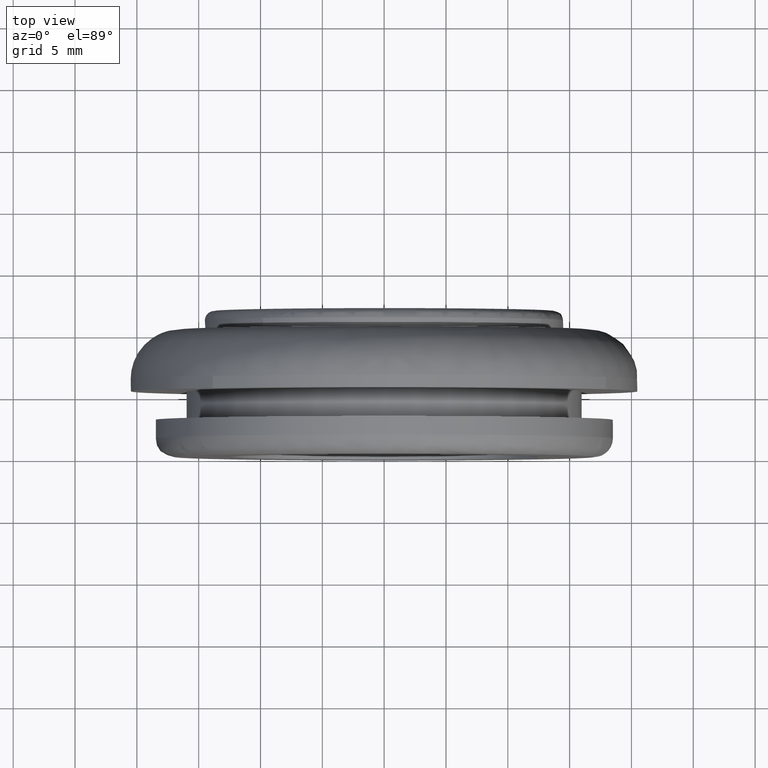
[diagram: clean part render]
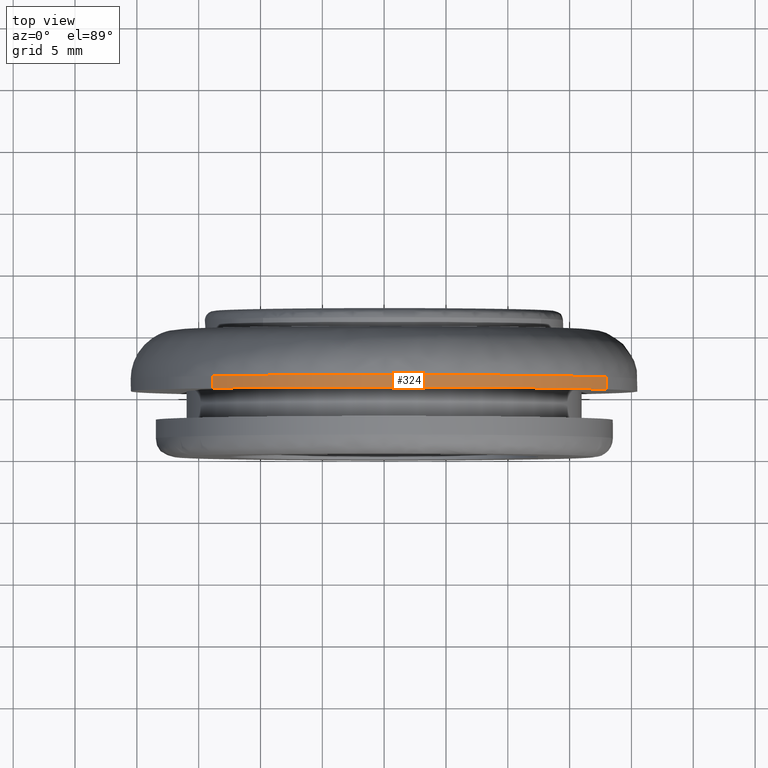
[diagram: same view with one face highlighted and labeled with its STEP entity id]
A machine part, top view. The second image highlights one B-rep face of the part: STEP entity #324.
In plain terms, the highlighted face is a freeform B-spline surface patch.
Its self-contained STEP definition (entity closure, byte-faithful):
#230=CARTESIAN_POINT('',(17.936401762584172,6.324999999999892,9.926504511214775));
#231=CARTESIAN_POINT('',(16.758128666065865,6.324999999999891,12.055549999616009));
#232=CARTESIAN_POINT('',(15.114185404607539,6.324999999999890,13.849599256121030));
#233=CARTESIAN_POINT('',(1.264586148486503,6.324999999999890,28.963784660728571));
#234=CARTESIAN_POINT('',(-13.849599256121030,6.324999999999890,15.114185404607539));
#235=CARTESIAN_POINT('',(17.936401762584172,5.274374999999889,9.926504511214775));
#236=CARTESIAN_POINT('',(16.758128666065865,5.274374999999889,12.055549999616009));
#237=CARTESIAN_POINT('',(15.114185404607539,5.274374999999889,13.849599256121030));
#238=CARTESIAN_POINT('',(1.264586148486503,5.274374999999888,28.963784660728571));
#239=CARTESIAN_POINT('',(-13.849599256121030,5.274374999999889,15.114185404607539));
#247=(BOUNDED_SURFACE()B_SPLINE_SURFACE(2,1,((#230,#235),(#231,#236),(#232,#237),(#233,#238),(#234,#239)),.UNSPECIFIED.,.F.,.F.,.U.)B_SPLINE_SURFACE_WITH_KNOTS((3,2,3),(2,2),(0.0,5.434481938335012,39.399994052928797),(0.0,1.0),.UNSPECIFIED.)GEOMETRIC_REPRESENTATION_ITEM()RATIONAL_B_SPLINE_SURFACE(((0.921270302782944,0.921270302782944),(0.953137084989848,0.953137084989848),(1.0,1.0),(0.707106781186548,0.707106781186548),(1.0,1.0)))REPRESENTATION_ITEM('')SURFACE());
#248=CARTESIAN_POINT('',(17.936403659718611,6.299996840897239,9.926501083237326));
#249=VERTEX_POINT('',#248);
#250=CARTESIAN_POINT('',(0.0,6.299999999999890,20.500000000000000));
#251=VERTEX_POINT('',#250);
#252=CARTESIAN_POINT('',(17.936403659718604,6.299996840897239,9.926501083237326));
#253=CARTESIAN_POINT('',(12.084737381349155,6.299998695911965,20.500000000000178));
#254=CARTESIAN_POINT('',(0.0,6.299999999999890,20.500000000000000));
#262=(BOUNDED_CURVE()B_SPLINE_CURVE(2,(#252,#253,#254),.UNSPECIFIED.,.F.,.U.)B_SPLINE_CURVE_WITH_KNOTS((3,3),(0.332484259560699,0.500000000000000),.UNSPECIFIED.)CURVE()GEOMETRIC_REPRESENTATION_ITEM()RATIONAL_B_SPLINE_CURVE((0.870495160891632,0.803743102323258,1.0))REPRESENTATION_ITEM(''));
#263=EDGE_CURVE('',#249,#251,#262,.T.);
#264=ORIENTED_EDGE('',*,*,#263,.T.);
#265=CARTESIAN_POINT('',(-13.849598433811980,6.299997751047101,15.114186158112631));
#266=VERTEX_POINT('',#265);
#267=CARTESIAN_POINT('',(0.0,6.299999999999890,20.500000000000000));
#268=CARTESIAN_POINT('',(-7.972013360987211,6.299999064663314,20.499999999999972));
#269=CARTESIAN_POINT('',(-13.849598433811982,6.299997751047101,15.114186158112620));
#277=(BOUNDED_CURVE()B_SPLINE_CURVE(2,(#267,#268,#269),.UNSPECIFIED.,.F.,.U.)B_SPLINE_CURVE_WITH_KNOTS((3,3),(0.500000000000000,0.618415200870903),.UNSPECIFIED.)CURVE()GEOMETRIC_REPRESENTATION_ITEM()RATIONAL_B_SPLINE_CURVE((1.0,0.861267962641919,0.853959781851732))REPRESENTATION_ITEM(''));
#278=EDGE_CURVE('',#251,#266,#277,.T.);
#279=ORIENTED_EDGE('',*,*,#278,.T.);
#280=CARTESIAN_POINT('',(-13.849598450727401,5.299999999999891,15.114186142614759));
#281=VERTEX_POINT('',#280);
#282=CARTESIAN_POINT('',(-13.849598433811980,6.299997751047101,15.114186158112631));
#283=CARTESIAN_POINT('',(-13.849598450727401,5.299999999999891,15.114186142614759));
#284=QUASI_UNIFORM_CURVE('',1,(#282,#283),.UNSPECIFIED.,.F.,.U.);
#285=EDGE_CURVE('',#266,#281,#284,.T.);
#286=ORIENTED_EDGE('',*,*,#285,.T.);
#287=CARTESIAN_POINT('',(0.0,5.299999999999890,20.500000000000000));
#288=VERTEX_POINT('',#287);
#289=CARTESIAN_POINT('',(0.0,5.299999999999890,20.500000000000000));
#290=CARTESIAN_POINT('',(-7.972013374192666,5.299999999999890,20.499999999999993));
#291=CARTESIAN_POINT('',(-13.849598450727425,5.299999999999890,15.114186142614775));
#299=(BOUNDED_CURVE()B_SPLINE_CURVE(2,(#289,#290,#291),.UNSPECIFIED.,.F.,.U.)B_SPLINE_CURVE_WITH_KNOTS((3,3),(0.500000000000000,0.618415201039816),.UNSPECIFIED.)CURVE()GEOMETRIC_REPRESENTATION_ITEM()RATIONAL_B_SPLINE_CURVE((1.0,0.861267962444025,0.853959781830883))REPRESENTATION_ITEM(''));
#300=EDGE_CURVE('',#288,#281,#299,.T.);
#301=ORIENTED_EDGE('',*,*,#300,.F.);
#302=CARTESIAN_POINT('',(17.936403453627150,5.299999999999891,9.926501455633794));
#303=VERTEX_POINT('',#302);
#304=CARTESIAN_POINT('',(17.936403453627143,5.299999999999891,9.926501455633794));
#305=CARTESIAN_POINT('',(12.084737094585593,5.299999999999890,20.500000000000004));
#306=CARTESIAN_POINT('',(0.0,5.299999999999890,20.500000000000000));
#314=(BOUNDED_CURVE()B_SPLINE_CURVE(2,(#304,#305,#306),.UNSPECIFIED.,.F.,.U.)B_SPLINE_CURVE_WITH_KNOTS((3,3),(0.332484262755645,0.500000000000000),.UNSPECIFIED.)CURVE()GEOMETRIC_REPRESENTATION_ITEM()RATIONAL_B_SPLINE_CURVE((0.870495158345373,0.803743106066369,1.0))REPRESENTATION_ITEM(''));
#315=EDGE_CURVE('',#303,#288,#314,.T.);
#316=ORIENTED_EDGE('',*,*,#315,.F.);
#317=CARTESIAN_POINT('',(17.936403659718611,6.299996840897239,9.926501083237326));
#318=CARTESIAN_POINT('',(17.936403453627150,5.299999999999891,9.926501455633794));
#319=QUASI_UNIFORM_CURVE('',1,(#317,#318),.UNSPECIFIED.,.F.,.U.);
#320=EDGE_CURVE('',#249,#303,#319,.T.);
#321=ORIENTED_EDGE('',*,*,#320,.F.);
#322=EDGE_LOOP('',(#264,#279,#286,#301,#316,#321));
#323=FACE_OUTER_BOUND('',#322,.T.);
#324=ADVANCED_FACE('',(#323),#247,.T.);